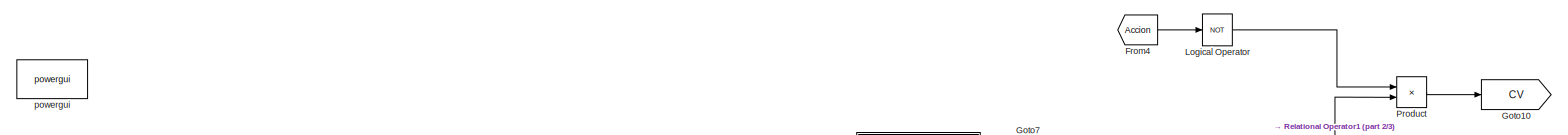
[diagram: root canvas - part 1/3, full width, top band]
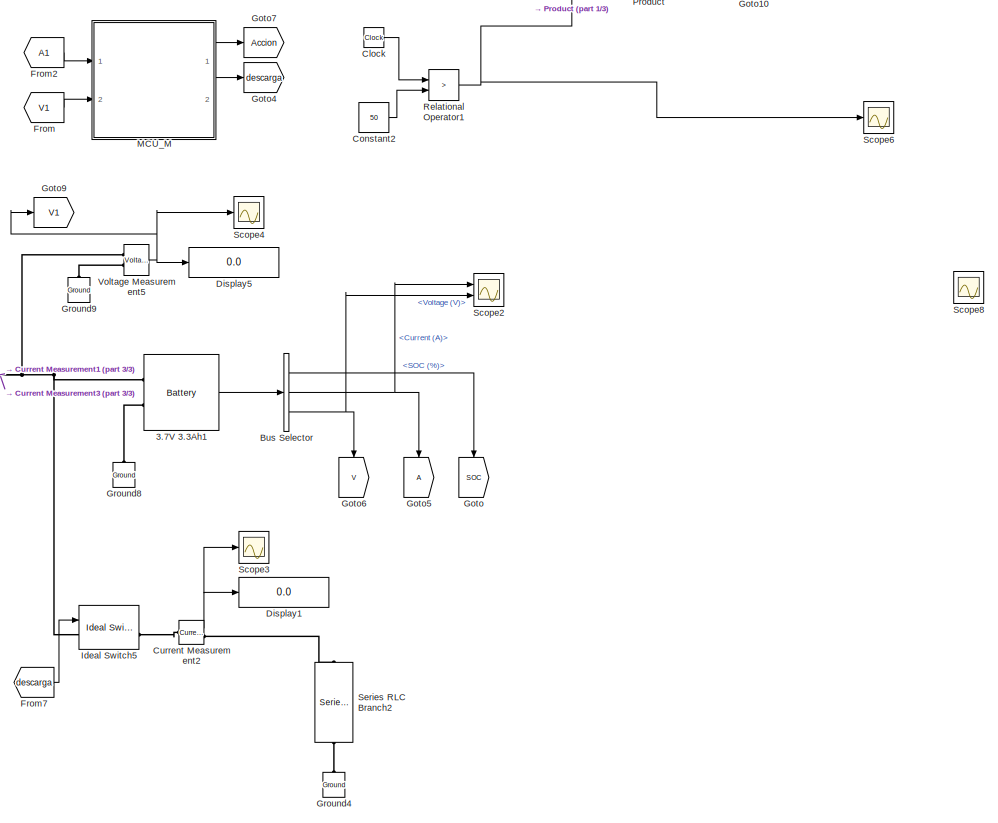
[diagram: root canvas - part 2/3, right side, full height]
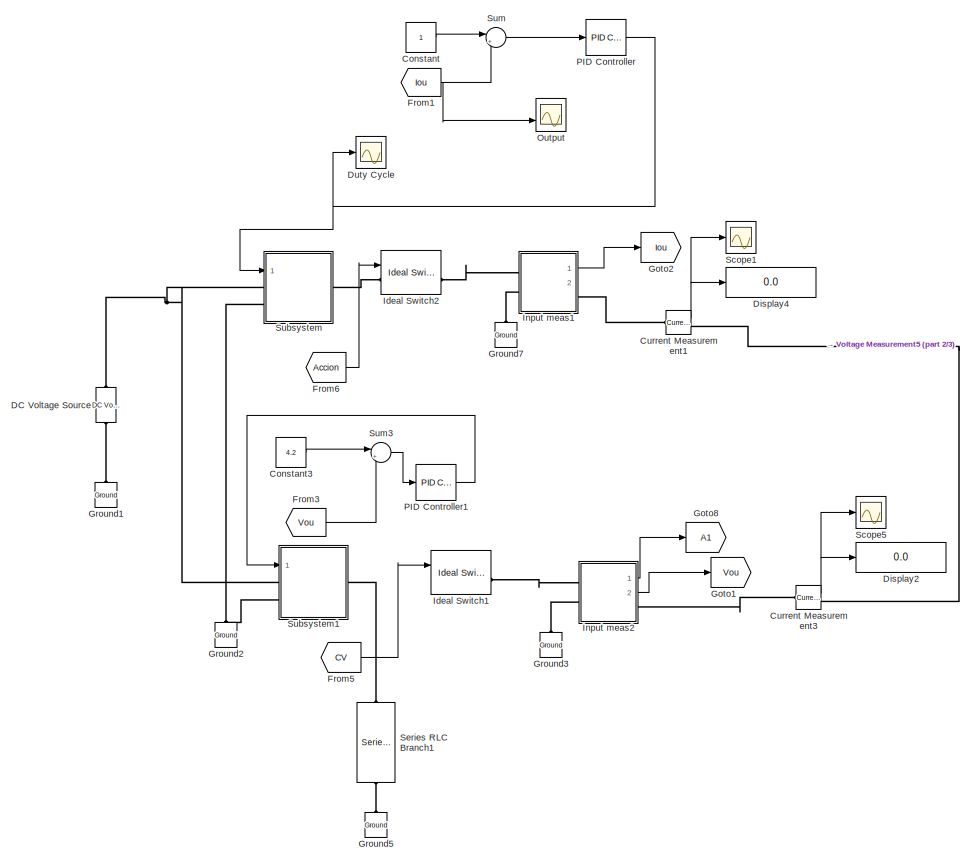
[diagram: root canvas - part 3/3, left side, full height]
MODEL slx_be4cfa6821c2
KIND model
CONFIG AbsTol = auto
CONFIG EnableMultiTasking = off
CONFIG FixedStep = auto
CONFIG MaxStep = auto
CONFIG MinStep = auto
CONFIG RelTol = 1e-3
CONFIG SampleTimeConstraint = Unconstrained
CONFIG Solver = VariableStepAuto
CONFIG SolverName = VariableStepAuto
CONFIG StartTime = 0.0
CONFIG StopTime = 1
BLOCK [Reference] 3.7V 3.3Ah1  REF=electricdrivelib/Extra Sources/Battery
  Ports = [0, 1, 0, 0, 0, 2]
  SourceBlock = electricdrivelib/Extra Sources/Battery
  SourceProductBaseCode = PS
  SourceProductName = Simscape Electrical
  SourceType = Battery
BLOCK [BusSelector] Bus Selector
  OutputAsBus = off
  OutputSignals = SOC (%),Current (A),Voltage (V)
  Ports = [1, 3]
BLOCK [Clock] Clock
BLOCK [Constant] Constant
BLOCK [Constant] Constant2
  Value = 50
BLOCK [Constant] Constant3
  Value = 4.2
BLOCK [Reference] Current Measurement1  REF=powerlib/Measurements/Current Measurement
  Ports = [0, 1, 0, 0, 0, 1, 1]
  SourceBlock = powerlib/Measurements/Current Measurement
  SourceProductBaseCode = PS
  SourceProductName = Simscape Electrical
  SourceType = Current Measurement
  UserDataPersistent = on
BLOCK [Reference] Current Measurement2  REF=powerlib/Measurements/Current Measurement
  Ports = [0, 1, 0, 0, 0, 1, 1]
  SourceBlock = powerlib/Measurements/Current Measurement
  SourceProductBaseCode = PS
  SourceProductName = Simscape Electrical
  SourceType = Current Measurement
  UserDataPersistent = on
BLOCK [Reference] Current Measurement3  REF=powerlib/Measurements/Current Measurement
  Ports = [0, 1, 0, 0, 0, 1, 1]
  SourceBlock = powerlib/Measurements/Current Measurement
  SourceProductBaseCode = PS
  SourceProductName = Simscape Electrical
  SourceType = Current Measurement
  UserDataPersistent = on
BLOCK [Reference] DC Voltage Source  REF=powerlib/Electrical
Sources/DC Voltage Source
  Ports = [0, 0, 0, 0, 0, 1, 1]
  SourceBlock = powerlib/Electrical\nSources/DC Voltage Source
  SourceProductBaseCode = PS
  SourceProductName = Simscape Electrical
  SourceType = DC Voltage Source
BLOCK [Display] Display1
  Decimation = 1
  Ports = [1]
BLOCK [Display] Display2
  Decimation = 1
  Ports = [1]
BLOCK [Display] Display4
  Decimation = 1
  Ports = [1]
BLOCK [Display] Display5
  Decimation = 1
  Ports = [1]
BLOCK [Scope] Duty Cycle
  Floating = off
  NumInputPorts = 1
  Ports = [1]
  ScopeSpecificationString = Simulink.scopes.TimeScopeBlockCfg('CurrentConfiguration', extmgr.ConfigurationSet(extmgr.Configuration('Core','General UI',true),extmgr.Configuration('Core','Source UI',true),extmgr.Configuration('Sources','WiredSimulink',true,'DataLoggingVariableName','ScopeData3'),extmgr.Configuration('Visuals','Time Domain',true,'SerializedDisplays',{struct('MinYLimReal','0.07009','MaxYLimReal','0.3692','YLabel...<+1467ch>
BLOCK [From] From
  GotoTag = V1
BLOCK [From] From1
  GotoTag = Iou
BLOCK [From] From2
  GotoTag = A1
BLOCK [From] From3
  GotoTag = Vou
BLOCK [From] From4
  GotoTag = Accion
BLOCK [From] From5
  GotoTag = CV
BLOCK [From] From6
  GotoTag = Accion
BLOCK [From] From7
  GotoTag = descarga
BLOCK [Goto] Goto
  GotoTag = SOC
BLOCK [Goto] Goto1
  GotoTag = Vou
BLOCK [Goto] Goto10
  GotoTag = CV
BLOCK [Goto] Goto2
  GotoTag = Iou
BLOCK [Goto] Goto4
  GotoTag = descarga
BLOCK [Goto] Goto5
BLOCK [Goto] Goto6
  GotoTag = V
BLOCK [Goto] Goto7
  GotoTag = Accion
BLOCK [Goto] Goto8
  GotoTag = A1
BLOCK [Goto] Goto9
  GotoTag = V1
BLOCK [Reference] Ground1  REF=powerlib/Elements/Ground
  Ports = [0, 0, 0, 0, 0, 1]
  SourceBlock = powerlib/Elements/Ground
  SourceProductBaseCode = PS
  SourceProductName = Simscape Electrical
  SourceType = Ground
BLOCK [Reference] Ground2  REF=powerlib/Elements/Ground
  Ports = [0, 0, 0, 0, 0, 1]
  SourceBlock = powerlib/Elements/Ground
  SourceProductBaseCode = PS
  SourceProductName = Simscape Electrical
  SourceType = Ground
BLOCK [Reference] Ground3  REF=powerlib/Elements/Ground
  Ports = [0, 0, 0, 0, 0, 1]
  SourceBlock = powerlib/Elements/Ground
  SourceProductBaseCode = PS
  SourceProductName = Simscape Electrical
  SourceType = Ground
BLOCK [Reference] Ground4  REF=powerlib/Elements/Ground
  Ports = [0, 0, 0, 0, 0, 1]
  SourceBlock = powerlib/Elements/Ground
  SourceProductBaseCode = PS
  SourceProductName = Simscape Electrical
  SourceType = Ground
BLOCK [Reference] Ground5  REF=powerlib/Elements/Ground
  Ports = [0, 0, 0, 0, 0, 1]
  SourceBlock = powerlib/Elements/Ground
  SourceProductBaseCode = PS
  SourceProductName = Simscape Electrical
  SourceType = Ground
BLOCK [Reference] Ground7  REF=powerlib/Elements/Ground
  Ports = [0, 0, 0, 0, 0, 1]
  SourceBlock = powerlib/Elements/Ground
  SourceProductBaseCode = PS
  SourceProductName = Simscape Electrical
  SourceType = Ground
BLOCK [Reference] Ground8  REF=powerlib/Elements/Ground
  Ports = [0, 0, 0, 0, 0, 1]
  SourceBlock = powerlib/Elements/Ground
  SourceProductBaseCode = PS
  SourceProductName = Simscape Electrical
  SourceType = Ground
BLOCK [Reference] Ground9  REF=powerlib/Elements/Ground
  Ports = [0, 0, 0, 0, 0, 1]
  SourceBlock = powerlib/Elements/Ground
  SourceProductBaseCode = PS
  SourceProductName = Simscape Electrical
  SourceType = Ground
BLOCK [Reference] Ideal Switch1  REF=powerlib/Power
Electronics/Ideal Switch
  Ports = [1, 1, 0, 0, 0, 1, 1]
  SourceBlock = powerlib/Power\nElectronics/Ideal Switch
  SourceProductBaseCode = PS
  SourceProductName = Simscape Electrical
  SourceType = Ideal Switch
BLOCK [Reference] Ideal Switch2  REF=powerlib/Power
Electronics/Ideal Switch
  Ports = [1, 1, 0, 0, 0, 1, 1]
  SourceBlock = powerlib/Power\nElectronics/Ideal Switch
  SourceProductBaseCode = PS
  SourceProductName = Simscape Electrical
  SourceType = Ideal Switch
BLOCK [Reference] Ideal Switch5  REF=powerlib/Power
Electronics/Ideal Switch
  Ports = [1, 1, 0, 0, 0, 1, 1]
  SourceBlock = powerlib/Power\nElectronics/Ideal Switch
  SourceProductBaseCode = PS
  SourceProductName = Simscape Electrical
  SourceType = Ideal Switch
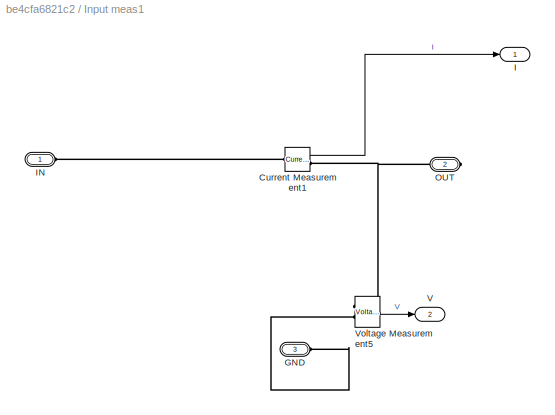
BLOCK [SubSystem] Input meas1
  Ports = [0, 2, 0, 0, 0, 2, 1]
  RequestExecContextInheritance = off
BLOCK [Reference] Input meas1/Current Measurement1  REF=powerlib/Measurements/Current Measurement
  Ports = [0, 1, 0, 0, 0, 1, 1]
  SourceBlock = powerlib/Measurements/Current Measurement
  SourceProductBaseCode = PS
  SourceProductName = Simscape Electrical
  SourceType = Current Measurement
  UserDataPersistent = on
BLOCK [PMIOPort] Input meas1/GND
  Port = 3
  Side = Left
BLOCK [Outport] Input meas1/I
  IconDisplay = Port number
  VectorParamsAs1DForOutWhenUnconnected = on
BLOCK [PMIOPort] Input meas1/IN
  Side = Left
BLOCK [PMIOPort] Input meas1/OUT
  Port = 2
  Side = Right
BLOCK [Outport] Input meas1/V
  IconDisplay = Port number
  Port = 2
  VectorParamsAs1DForOutWhenUnconnected = on
BLOCK [Reference] Input meas1/Voltage Measurement5  REF=powerlib/Measurements/Voltage Measurement
  Ports = [0, 1, 0, 0, 0, 2]
  SourceBlock = powerlib/Measurements/Voltage Measurement
  SourceProductBaseCode = PS
  SourceProductName = Simscape Electrical
  SourceType = Voltage Measurement
  UserDataPersistent = on
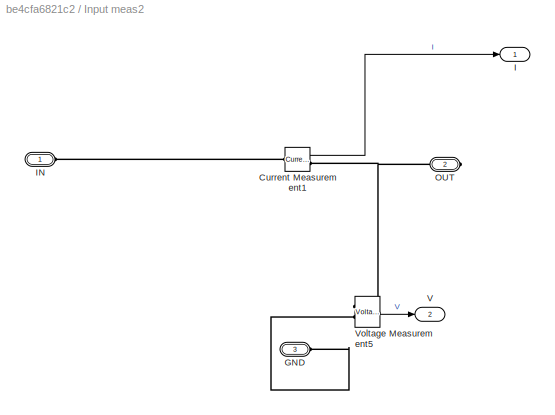
BLOCK [SubSystem] Input meas2
  Ports = [0, 2, 0, 0, 0, 2, 1]
  RequestExecContextInheritance = off
BLOCK [Reference] Input meas2/Current Measurement1  REF=powerlib/Measurements/Current Measurement
  Ports = [0, 1, 0, 0, 0, 1, 1]
  SourceBlock = powerlib/Measurements/Current Measurement
  SourceProductBaseCode = PS
  SourceProductName = Simscape Electrical
  SourceType = Current Measurement
  UserDataPersistent = on
BLOCK [PMIOPort] Input meas2/GND
  Port = 3
  Side = Left
BLOCK [Outport] Input meas2/I
  IconDisplay = Port number
  VectorParamsAs1DForOutWhenUnconnected = on
BLOCK [PMIOPort] Input meas2/IN
  Side = Left
BLOCK [PMIOPort] Input meas2/OUT
  Port = 2
  Side = Right
BLOCK [Outport] Input meas2/V
  IconDisplay = Port number
  Port = 2
  VectorParamsAs1DForOutWhenUnconnected = on
BLOCK [Reference] Input meas2/Voltage Measurement5  REF=powerlib/Measurements/Voltage Measurement
  Ports = [0, 1, 0, 0, 0, 2]
  SourceBlock = powerlib/Measurements/Voltage Measurement
  SourceProductBaseCode = PS
  SourceProductName = Simscape Electrical
  SourceType = Voltage Measurement
  UserDataPersistent = on
BLOCK [Logic] Logical Operator
  AllPortsSameDT = off
  Operator = NOT
  OutDataTypeStr = boolean
  Ports = [1, 1]
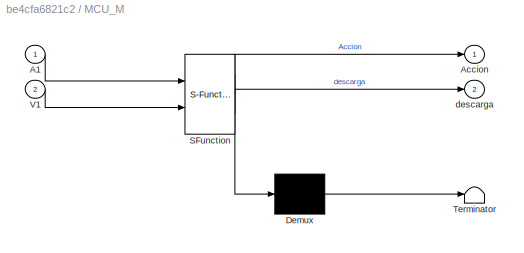
BLOCK [SubSystem] MCU_M
  ErrorFcn = Stateflow.Translate.translate
  PermitHierarchicalResolution = ExplicitOnly
  Ports = [2, 2]
  RequestExecContextInheritance = off
  SFBlockType = Chart
  TreatAsAtomicUnit = on
BLOCK [Demux] MCU_M/ Demux 
  Outputs = 1
  Ports = [1, 1]
BLOCK [S-Function] MCU_M/ SFunction 
  EnableBusSupport = on
  FunctionName = sf_sfun
  PortCounts = [2 3]
  Ports = [2, 3]
  SFcnIsStateOwnerBlock = off
  SFunctionDeploymentMode = off
  Tag = Stateflow S-Function MPC_CelltesterV1 3
BLOCK [Terminator] MCU_M/ Terminator 
BLOCK [Inport] MCU_M/A1
  IconDisplay = Port number
BLOCK [Outport] MCU_M/Accion
  IconDisplay = Port number
BLOCK [Inport] MCU_M/V1
  IconDisplay = Port number
  Port = 2
BLOCK [Outport] MCU_M/descarga
  IconDisplay = Port number
  Port = 2
BLOCK [Scope] Output
  Floating = off
  NumInputPorts = 2
  Ports = [2]
  ScopeSpecificationString = Simulink.scopes.TimeScopeBlockCfg('CurrentConfiguration', extmgr.ConfigurationSet(extmgr.Configuration('Core','General UI',true),extmgr.Configuration('Core','Source UI',true),extmgr.Configuration('Sources','WiredSimulink',true,'DataLoggingVariableName','ScopeData4'),extmgr.Configuration('Visuals','Time Domain',true,'SerializedDisplays',{struct('MinYLimReal','3.83661','MaxYLimReal','4.23977','YLabe...<+2035ch>
BLOCK [Reference] PID Controller  REF=simulink/Continuous/PID Controller
  Ports = [1, 1]
  SourceBlock = simulink/Continuous/PID Controller
  SourceProductBaseCode = SL
  SourceType = PID 1dof
BLOCK [Reference] PID Controller1  REF=simulink/Continuous/PID Controller
  Ports = [1, 1]
  SourceBlock = simulink/Continuous/PID Controller
  SourceProductBaseCode = SL
  SourceType = PID 1dof
BLOCK [Product] Product
  InputSameDT = off
  OutDataTypeStr = Inherit: Inherit via internal rule
  Ports = [2, 1]
  RndMeth = Floor
  SaturateOnIntegerOverflow = off
BLOCK [RelationalOperator] Relational Operator1
  InputSameDT = off
  Operator = >
  OutDataTypeStr = boolean
  Ports = [2, 1]
  RndMeth = Simplest
BLOCK [Scope] Scope1
  Floating = off
  NumInputPorts = 1
  Ports = [1]
  ScopeSpecificationString = Simulink.scopes.TimeScopeBlockCfg('CurrentConfiguration', extmgr.ConfigurationSet(extmgr.Configuration('Core','General UI',true),extmgr.Configuration('Core','Source UI',true),extmgr.Configuration('Sources','WiredSimulink',true,'DataLoggingVariableName','ScopeData1'),extmgr.Configuration('Visuals','Time Domain',true,'SerializedDisplays',{struct('MinYLimReal','-4.13488','MaxYLimReal','32.12606','YLa...<+1483ch>
BLOCK [Scope] Scope2
  Floating = off
  NumInputPorts = 2
  Ports = [2]
  ScopeSpecificationString = Simulink.scopes.TimeScopeBlockCfg('CurrentConfiguration', extmgr.ConfigurationSet(extmgr.Configuration('Core','General UI',true),extmgr.Configuration('Core','Source UI',true),extmgr.Configuration('Sources','WiredSimulink',true,'DataLoggingVariableName','ScopeData1'),extmgr.Configuration('Visuals','Time Domain',true,'SerializedDisplays',{struct('MinYLimReal','-11.93278','MaxYLimReal','41.91746','YL...<+1828ch>
BLOCK [Scope] Scope3
  Floating = off
  NumInputPorts = 1
  Ports = [1]
  ScopeSpecificationString = Simulink.scopes.TimeScopeBlockCfg('CurrentConfiguration', extmgr.ConfigurationSet(extmgr.Configuration('Core','General UI',true),extmgr.Configuration('Core','Source UI',true),extmgr.Configuration('Sources','WiredSimulink',true,'DataLoggingVariableName','ScopeData2'),extmgr.Configuration('Visuals','Time Domain',true,'SerializedDisplays',{struct('MinYLimReal','-4.13488','MaxYLimReal','32.12606','YLa...<+1483ch>
BLOCK [Scope] Scope4
  Floating = off
  NumInputPorts = 1
  Ports = [1]
  ScopeSpecificationString = Simulink.scopes.TimeScopeBlockCfg('CurrentConfiguration', extmgr.ConfigurationSet(extmgr.Configuration('Core','General UI',true),extmgr.Configuration('Core','Source UI',true),extmgr.Configuration('Sources','WiredSimulink',true,'DataLoggingVariableName','ScopeData2'),extmgr.Configuration('Visuals','Time Domain',true,'SerializedDisplays',{struct('MinYLimReal','3.92313','MaxYLimReal','4.55964','YLabe...<+1777ch>
BLOCK [Scope] Scope5
  Floating = off
  NumInputPorts = 1
  Ports = [1]
  ScopeSpecificationString = Simulink.scopes.TimeScopeBlockCfg('CurrentConfiguration', extmgr.ConfigurationSet(extmgr.Configuration('Core','General UI',true),extmgr.Configuration('Core','Source UI',true),extmgr.Configuration('Sources','WiredSimulink',true,'DataLoggingVariableName','ScopeData3'),extmgr.Configuration('Visuals','Time Domain',true,'SerializedDisplays',{struct('MinYLimReal','-4.13488','MaxYLimReal','32.12606','YLa...<+1483ch>
BLOCK [Scope] Scope6
  Floating = off
  NumInputPorts = 1
  Ports = [1]
  ScopeSpecificationString = Simulink.scopes.TimeScopeBlockCfg('CurrentConfiguration', extmgr.ConfigurationSet(extmgr.Configuration('Core','General UI',true),extmgr.Configuration('Core','Source UI',true),extmgr.Configuration('Sources','WiredSimulink',true,'DataLoggingVariableName','ScopeData4'),extmgr.Configuration('Visuals','Time Domain',true,'SerializedDisplays',{struct('MinYLimReal','-0.125','MaxYLimReal','1.125','YLabelRe...<+1398ch>
BLOCK [Scope] Scope8
  Floating = off
  NumInputPorts = 1
  Ports = [1]
  ScopeSpecificationString = Simulink.scopes.TimeScopeBlockCfg('CurrentConfiguration', extmgr.ConfigurationSet(extmgr.Configuration('Core','General UI',true),extmgr.Configuration('Core','Source UI',true),extmgr.Configuration('Sources','WiredSimulink',true,'DataLoggingVariableName','ScopeData6'),extmgr.Configuration('Visuals','Time Domain',true,'SerializedDisplays',{struct('MinYLimReal','3.92313','MaxYLimReal','4.55964','YLabe...<+1777ch>
BLOCK [Reference] Series RLC Branch1  REF=powerlib/Elements/Series RLC Branch
  Ports = [0, 0, 0, 0, 0, 1, 1]
  SourceBlock = powerlib/Elements/Series RLC Branch
  SourceProductBaseCode = PS
  SourceProductName = Simscape Electrical
  SourceType = Series RLC Branch
BLOCK [Reference] Series RLC Branch2  REF=powerlib/Elements/Series RLC Branch
  Ports = [0, 0, 0, 0, 0, 1, 1]
  SourceBlock = powerlib/Elements/Series RLC Branch
  SourceProductBaseCode = PS
  SourceProductName = Simscape Electrical
  SourceType = Series RLC Branch
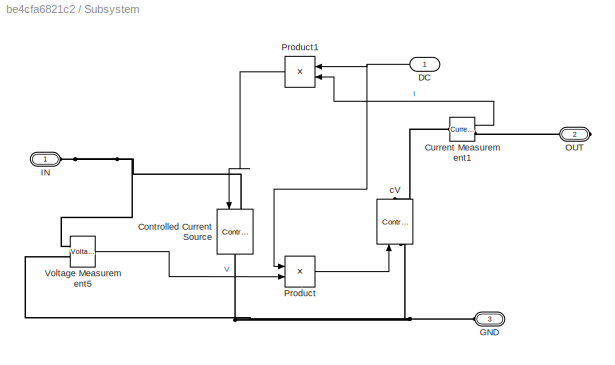
BLOCK [SubSystem] Subsystem
  Ports = [1, 0, 0, 0, 0, 2, 1]
  RequestExecContextInheritance = off
BLOCK [Reference] Subsystem/Controlled Current Source  REF=powerlib/Electrical
Sources/Controlled Current Source
  Ports = [1, 0, 0, 0, 0, 1, 1]
  SourceBlock = powerlib/Electrical\nSources/Controlled Current Source
  SourceProductBaseCode = PS
  SourceProductName = Simscape Electrical
  SourceType = Controlled Current Source
BLOCK [Reference] Subsystem/Current Measurement1  REF=powerlib/Measurements/Current Measurement
  Ports = [0, 1, 0, 0, 0, 1, 1]
  SourceBlock = powerlib/Measurements/Current Measurement
  SourceProductBaseCode = PS
  SourceProductName = Simscape Electrical
  SourceType = Current Measurement
  UserDataPersistent = on
BLOCK [Inport] Subsystem/DC
  IconDisplay = Port number
BLOCK [PMIOPort] Subsystem/GND
  Port = 3
  Side = Left
BLOCK [PMIOPort] Subsystem/IN
  Side = Left
BLOCK [PMIOPort] Subsystem/OUT
  Port = 2
  Side = Right
BLOCK [Product] Subsystem/Product
  InputSameDT = off
  OutDataTypeStr = Inherit: Inherit via internal rule
  Ports = [2, 1]
  RndMeth = Floor
  SaturateOnIntegerOverflow = off
BLOCK [Product] Subsystem/Product1
  InputSameDT = off
  OutDataTypeStr = Inherit: Inherit via internal rule
  Ports = [2, 1]
  RndMeth = Floor
  SaturateOnIntegerOverflow = off
BLOCK [Reference] Subsystem/Voltage Measurement5  REF=powerlib/Measurements/Voltage Measurement
  Ports = [0, 1, 0, 0, 0, 2]
  SourceBlock = powerlib/Measurements/Voltage Measurement
  SourceProductBaseCode = PS
  SourceProductName = Simscape Electrical
  SourceType = Voltage Measurement
  UserDataPersistent = on
BLOCK [Reference] Subsystem/cV  REF=powerlib/Electrical
Sources/Controlled Voltage Source
  Ports = [1, 0, 0, 0, 0, 1, 1]
  SourceBlock = powerlib/Electrical\nSources/Controlled Voltage Source
  SourceProductBaseCode = PS
  SourceProductName = Simscape Electrical
  SourceType = Controlled Voltage Source
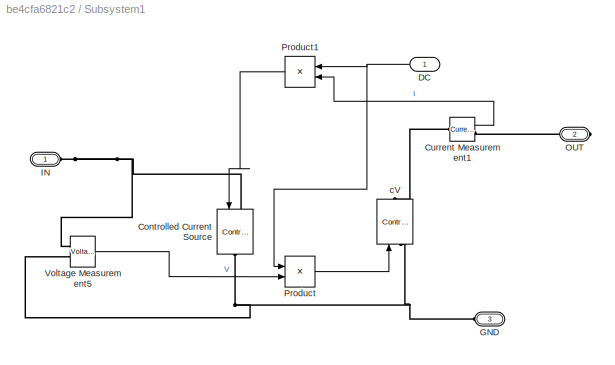
BLOCK [SubSystem] Subsystem1
  Ports = [1, 0, 0, 0, 0, 2, 1]
  RequestExecContextInheritance = off
BLOCK [Reference] Subsystem1/Controlled Current Source  REF=powerlib/Electrical
Sources/Controlled Current Source
  Ports = [1, 0, 0, 0, 0, 1, 1]
  SourceBlock = powerlib/Electrical\nSources/Controlled Current Source
  SourceProductBaseCode = PS
  SourceProductName = Simscape Electrical
  SourceType = Controlled Current Source
BLOCK [Reference] Subsystem1/Current Measurement1  REF=powerlib/Measurements/Current Measurement
  Ports = [0, 1, 0, 0, 0, 1, 1]
  SourceBlock = powerlib/Measurements/Current Measurement
  SourceProductBaseCode = PS
  SourceProductName = Simscape Electrical
  SourceType = Current Measurement
  UserDataPersistent = on
BLOCK [Inport] Subsystem1/DC
  IconDisplay = Port number
BLOCK [PMIOPort] Subsystem1/GND
  Port = 3
  Side = Left
BLOCK [PMIOPort] Subsystem1/IN
  Side = Left
BLOCK [PMIOPort] Subsystem1/OUT
  Port = 2
  Side = Right
BLOCK [Product] Subsystem1/Product
  InputSameDT = off
  OutDataTypeStr = Inherit: Inherit via internal rule
  Ports = [2, 1]
  RndMeth = Floor
  SaturateOnIntegerOverflow = off
BLOCK [Product] Subsystem1/Product1
  InputSameDT = off
  OutDataTypeStr = Inherit: Inherit via internal rule
  Ports = [2, 1]
  RndMeth = Floor
  SaturateOnIntegerOverflow = off
BLOCK [Reference] Subsystem1/Voltage Measurement5  REF=powerlib/Measurements/Voltage Measurement
  Ports = [0, 1, 0, 0, 0, 2]
  SourceBlock = powerlib/Measurements/Voltage Measurement
  SourceProductBaseCode = PS
  SourceProductName = Simscape Electrical
  SourceType = Voltage Measurement
  UserDataPersistent = on
BLOCK [Reference] Subsystem1/cV  REF=powerlib/Electrical
Sources/Controlled Voltage Source
  Ports = [1, 0, 0, 0, 0, 1, 1]
  SourceBlock = powerlib/Electrical\nSources/Controlled Voltage Source
  SourceProductBaseCode = PS
  SourceProductName = Simscape Electrical
  SourceType = Controlled Voltage Source
BLOCK [Sum] Sum
  IconShape = round
  InputSameDT = off
  Inputs = |+-
  OutDataTypeStr = Inherit: Inherit via internal rule
  Ports = [2, 1]
  SaturateOnIntegerOverflow = off
BLOCK [Sum] Sum3
  IconShape = round
  InputSameDT = off
  Inputs = |+-
  OutDataTypeStr = Inherit: Inherit via internal rule
  Ports = [2, 1]
  SaturateOnIntegerOverflow = off
BLOCK [Reference] Voltage Measurement5  REF=powerlib/Measurements/Voltage Measurement
  Ports = [0, 1, 0, 0, 0, 2]
  SourceBlock = powerlib/Measurements/Voltage Measurement
  SourceProductBaseCode = PS
  SourceProductName = Simscape Electrical
  SourceType = Voltage Measurement
  UserDataPersistent = on
BLOCK [Reference] powergui  REF=powerlib/powergui
  Ports = []
  Priority = 1
  SourceBlock = powerlib/powergui
  SourceProductBaseCode = PS
  SourceProductName = Simscape Electrical
  SourceType = PSB option menu block
LINE 3.7V 3.3Ah1:1 -> Bus Selector:1
LINE Bus Selector:1 -> Goto:1
NET Bus Selector:2 -> Goto5:1, Scope2:1
NET Bus Selector:3 -> Goto6:1, Scope2:2
LINE Clock:1 -> Relational Operator1:1
LINE Constant2:1 -> Relational Operator1:2
LINE Constant3:1 -> Sum3:1
LINE Constant:1 -> Sum:1
NET Current Measurement1:1 -> Display4:1, Scope1:1
NET Current Measurement2:1 -> Display1:1, Scope3:1
NET Current Measurement3:1 -> Display2:1, Scope5:1
NET From1:1 -> Output:2, Sum:2
LINE From2:1 -> MCU_M:1
LINE From3:1 -> Sum3:2
LINE From4:1 -> Logical Operator:1
LINE From5:1 -> Ideal Switch1:1
LINE From6:1 -> Ideal Switch2:1
LINE From7:1 -> Ideal Switch5:1
LINE From:1 -> MCU_M:2
LINE Input meas1/Current Measurement1:1 -> Input meas1/I:1
LINE Input meas1/Voltage Measurement5:1 -> Input meas1/V:1
LINE Input meas1:1 -> Goto2:1
LINE Input meas2/Current Measurement1:1 -> Input meas2/I:1
LINE Input meas2/Voltage Measurement5:1 -> Input meas2/V:1
LINE Input meas2:1 -> Goto8:1
LINE Input meas2:2 -> Goto1:1
LINE Logical Operator:1 -> Product:1
LINE MCU_M:1 -> Goto7:1
LINE MCU_M:2 -> Goto4:1
LINE PID Controller1:1 -> Subsystem1:1
NET PID Controller:1 -> Duty Cycle:1, Subsystem:1
LINE Product:1 -> Goto10:1
NET Relational Operator1:1 -> Product:2, Scope6:1
LINE Subsystem/Current Measurement1:1 -> Subsystem/Product1:2
NET Subsystem/DC:1 -> Subsystem/Product1:1, Subsystem/Product:1
LINE Subsystem/Product1:1 -> Subsystem/Controlled Current Source:1
LINE Subsystem/Product:1 -> Subsystem/cV:1
LINE Subsystem/Voltage Measurement5:1 -> Subsystem/Product:2
LINE Subsystem1/Current Measurement1:1 -> Subsystem1/Product1:2
NET Subsystem1/DC:1 -> Subsystem1/Product1:1, Subsystem1/Product:1
LINE Subsystem1/Product1:1 -> Subsystem1/Controlled Current Source:1
LINE Subsystem1/Product:1 -> Subsystem1/cV:1
LINE Subsystem1/Voltage Measurement5:1 -> Subsystem1/Product:2
LINE Sum3:1 -> PID Controller1:1
LINE Sum:1 -> PID Controller:1
NET Voltage Measurement5:1 -> Display5:1, Goto9:1, Scope4:1
PNET net1: 3.7V 3.3Ah1:LConn1 -- Current Measurement1:RConn1 -- Current Measurement3:RConn1 -- Ideal Switch5:LConn1 -- Voltage Measurement5:LConn1
PLINE 3.7V 3.3Ah1:LConn2 -- Ground8:LConn1
PLINE Current Measurement1:LConn1 -- Input meas1:RConn1
PLINE Current Measurement2:LConn1 -- Ideal Switch5:RConn1
PLINE Current Measurement2:RConn1 -- Series RLC Branch2:LConn1
PLINE Current Measurement3:LConn1 -- Input meas2:RConn1
PLINE DC Voltage Source:LConn1 -- Ground1:LConn1
PNET net2: DC Voltage Source:RConn1 -- Subsystem1:LConn1 -- Subsystem:LConn1
PNET net3: Ground2:LConn1 -- Subsystem1:LConn2 -- Subsystem:LConn2
PLINE Ground3:LConn1 -- Input meas2:LConn2
PLINE Ground4:LConn1 -- Series RLC Branch2:RConn1
PLINE Ground5:LConn1 -- Series RLC Branch1:RConn1
PLINE Ground7:LConn1 -- Input meas1:LConn2
PLINE Ground9:LConn1 -- Voltage Measurement5:LConn2
PLINE Ideal Switch1:RConn1 -- Input meas2:LConn1
PLINE Ideal Switch2:LConn1 -- Subsystem:RConn1
PLINE Ideal Switch2:RConn1 -- Input meas1:LConn1
PLINE Input meas1/Current Measurement1:LConn1 -- Input meas1/IN:RConn1
PNET net4: Input meas1/Current Measurement1:RConn1 -- Input meas1/OUT:RConn1 -- Input meas1/Voltage Measurement5:LConn1
PLINE Input meas1/GND:RConn1 -- Input meas1/Voltage Measurement5:LConn2
PLINE Input meas2/Current Measurement1:LConn1 -- Input meas2/IN:RConn1
PNET net5: Input meas2/Current Measurement1:RConn1 -- Input meas2/OUT:RConn1 -- Input meas2/Voltage Measurement5:LConn1
PLINE Input meas2/GND:RConn1 -- Input meas2/Voltage Measurement5:LConn2
PLINE Series RLC Branch1:LConn1 -- Subsystem1:RConn1
PNET net6: Subsystem/Controlled Current Source:LConn1 -- Subsystem/IN:RConn1 -- Subsystem/Voltage Measurement5:LConn1
PNET net7: Subsystem/Controlled Current Source:RConn1 -- Subsystem/GND:RConn1 -- Subsystem/Voltage Measurement5:LConn2 -- Subsystem/cV:LConn1
PLINE Subsystem/Current Measurement1:LConn1 -- Subsystem/cV:RConn1
PLINE Subsystem/Current Measurement1:RConn1 -- Subsystem/OUT:RConn1
PNET net8: Subsystem1/Controlled Current Source:LConn1 -- Subsystem1/IN:RConn1 -- Subsystem1/Voltage Measurement5:LConn1
PNET net9: Subsystem1/Controlled Current Source:RConn1 -- Subsystem1/GND:RConn1 -- Subsystem1/Voltage Measurement5:LConn2 -- Subsystem1/cV:LConn1
PLINE Subsystem1/Current Measurement1:LConn1 -- Subsystem1/cV:RConn1
PLINE Subsystem1/Current Measurement1:RConn1 -- Subsystem1/OUT:RConn1
note: NET lines group one-source signal fan-out (src -> all destinations, sorted); 1:1 wires keep LINE; PNET lines group multi-terminal physical nets as a canonical sorted terminal list (undirected conserving connections); 2-terminal nets keep the pairwise PLINE form
CHART MCU_M states=4 transitions=6
  STATE_LABEL 'CC\n\nentry : Accion = 1'
  STATE_LABEL 'CV\n\nentry : Accion = 0'
  STATE_LABEL 'Carga\n\nentry : descarga = 1'
  STATE_LABEL 'Descarga\n\nentry : descarga  = 0'
